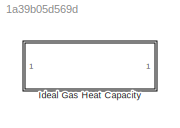
MODEL slx_1a39b05d569d
KIND library
CONFIG AbsTol = auto
CONFIG FixedStep = auto
CONFIG MaxStep = auto
CONFIG MinStep = auto
CONFIG RelTol = 1e-3
CONFIG SampleTimeConstraint = Unconstrained
CONFIG Solver = ode45
CONFIG SolverMode = Auto
CONFIG SolverName = ode45
CONFIG StartTime = 0.0
CONFIG StopTime = 10.0
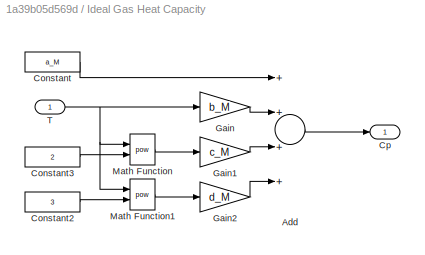
BLOCK [SubSystem] Ideal Gas Heat Capacity
  Ports = [1, 1]
  RequestExecContextInheritance = off
BLOCK [Sum] Ideal Gas Heat Capacity/Add
  InputSameDT = off
  Inputs = ++++
  OutDataTypeStr = Inherit: Inherit via internal rule
  Ports = [4, 1]
  SaturateOnIntegerOverflow = off
BLOCK [Constant] Ideal Gas Heat Capacity/Constant
  Value = a_M
BLOCK [Constant] Ideal Gas Heat Capacity/Constant2
  Value = 3
BLOCK [Constant] Ideal Gas Heat Capacity/Constant3
  Value = 2
BLOCK [Outport] Ideal Gas Heat Capacity/Cp
  IconDisplay = Port number
BLOCK [Gain] Ideal Gas Heat Capacity/Gain
  Gain = b_M
  OutDataTypeStr = Inherit: Inherit via internal rule
  ParamDataTypeStr = Inherit: Inherit via internal rule
  SaturateOnIntegerOverflow = off
BLOCK [Gain] Ideal Gas Heat Capacity/Gain1
  Gain = c_M
  OutDataTypeStr = Inherit: Inherit via internal rule
  ParamDataTypeStr = Inherit: Inherit via internal rule
  SaturateOnIntegerOverflow = off
BLOCK [Gain] Ideal Gas Heat Capacity/Gain2
  Gain = d_M
  OutDataTypeStr = Inherit: Inherit via internal rule
  ParamDataTypeStr = Inherit: Inherit via internal rule
  SaturateOnIntegerOverflow = off
BLOCK [Math] Ideal Gas Heat Capacity/Math Function
  Operator = pow
  Ports = [2, 1]
BLOCK [Math] Ideal Gas Heat Capacity/Math Function1
  Operator = pow
  Ports = [2, 1]
BLOCK [Inport] Ideal Gas Heat Capacity/T
  IconDisplay = Port number
LINE Ideal Gas Heat Capacity/Add:1 -> Ideal Gas Heat Capacity/Cp:1
LINE Ideal Gas Heat Capacity/Constant2:1 -> Ideal Gas Heat Capacity/Math Function1:2
LINE Ideal Gas Heat Capacity/Constant3:1 -> Ideal Gas Heat Capacity/Math Function:2
LINE Ideal Gas Heat Capacity/Constant:1 -> Ideal Gas Heat Capacity/Add:1
LINE Ideal Gas Heat Capacity/Gain1:1 -> Ideal Gas Heat Capacity/Add:3
LINE Ideal Gas Heat Capacity/Gain2:1 -> Ideal Gas Heat Capacity/Add:4
LINE Ideal Gas Heat Capacity/Gain:1 -> Ideal Gas Heat Capacity/Add:2
LINE Ideal Gas Heat Capacity/Math Function1:1 -> Ideal Gas Heat Capacity/Gain2:1
LINE Ideal Gas Heat Capacity/Math Function:1 -> Ideal Gas Heat Capacity/Gain1:1
NET Ideal Gas Heat Capacity/T:1 -> Ideal Gas Heat Capacity/Gain:1, Ideal Gas Heat Capacity/Math Function1:1, Ideal Gas Heat Capacity/Math Function:1
note: NET lines group one-source signal fan-out (src -> all destinations, sorted); 1:1 wires keep LINE
